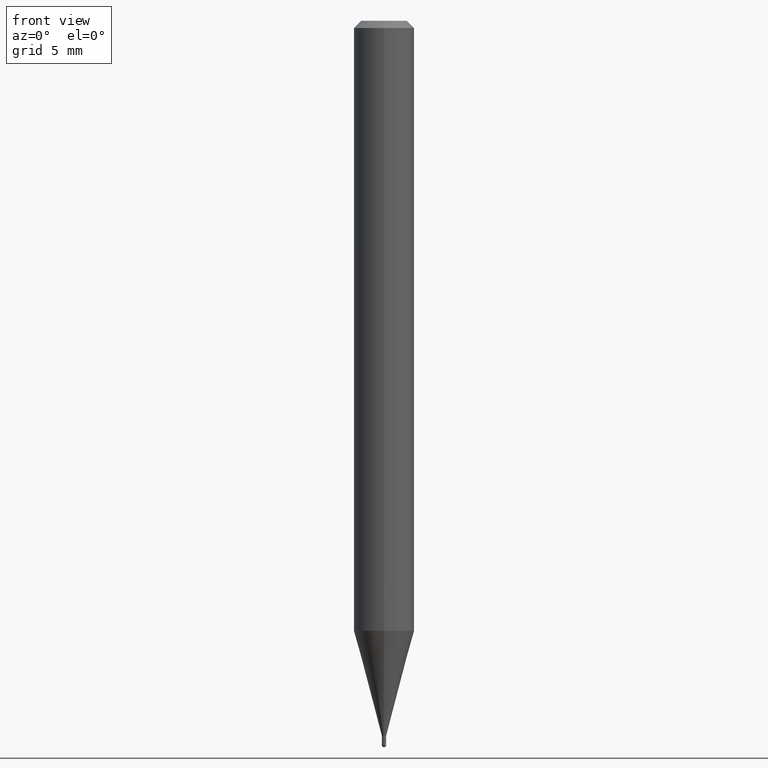
[diagram: clean part render]
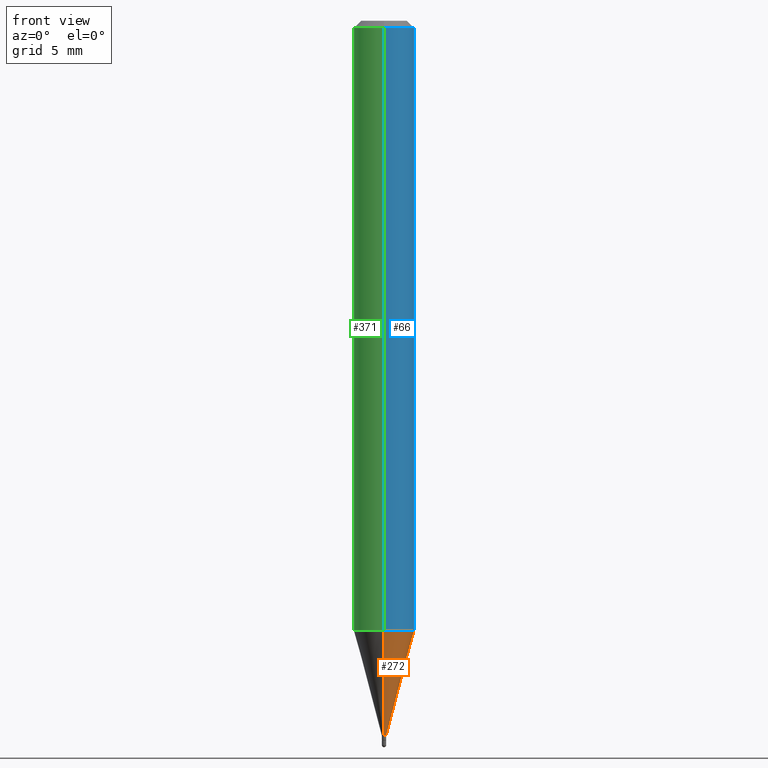
[diagram: same view with three faces highlighted in distinct colors, each labeled with its STEP entity id]
A machine part, front view with three faces highlighted in distinct colors.
Their STEP definitions:

[orange] entity #272 — the highlighted conical surface has half-angle 15 deg.
#5 = CIRCLE ( 'NONE', #73, 0.06250000000000000000 ) ;
#73 = AXIS2_PLACEMENT_3D ( 'NONE', #147, #467, #262 ) ;
#81 = CARTESIAN_POINT ( 'NONE',  ( 3.609521675180982747E-29, -5.153412540474946125E-15, -1.475999999999999979 ) ) ;
#82 = EDGE_CURVE ( 'NONE', #216, #176, #125, .T. ) ;
#87 = CARTESIAN_POINT ( 'NONE',  ( 2.380318164796668072E-16, 0.004499999999994770336, -1.475999999999999979 ) ) ;
#123 = EDGE_CURVE ( 'NONE', #216, #173, #169, .T. ) ;
#125 = LINE ( 'NONE', #128, #284 ) ;
#128 = CARTESIAN_POINT ( 'NONE',  ( -3.142333204955156550E-17, -0.004500000000005076328, -1.475999999999999979 ) ) ;
#139 = ORIENTED_EDGE ( 'NONE', *, *, #479, .F. ) ;
#147 = CARTESIAN_POINT ( 'NONE',  ( 3.080176647808220565E-29, -4.397652207725574751E-15, -1.259541053161005841 ) ) ;
#149 = DIRECTION ( 'NONE',  ( -2.445475389689012778E-29, 3.491471910890885040E-15, 1.000000000000000000 ) ) ;
#158 = CONICAL_SURFACE ( 'NONE', #232, 0.004499999999999923332, 0.2617993877991504625 ) ;
#169 = CIRCLE ( 'NONE', #386, 0.004499999999999923332 ) ;
#173 = VERTEX_POINT ( 'NONE', #87 ) ;
#176 = VERTEX_POINT ( 'NONE', #314 ) ;
#177 = DIRECTION ( 'NONE',  ( -2.445475389689012778E-29, 3.491471910890885040E-15, 1.000000000000000000 ) ) ;
#190 = DIRECTION ( 'NONE',  ( -6.982962677686265922E-15, -1.000000000000000000, 0.000000000000000000 ) ) ;
#202 = DIRECTION ( 'NONE',  ( 1.839019923739601499E-15, 0.2588190451025251249, 0.9659258262890670910 ) ) ;
#216 = VERTEX_POINT ( 'NONE', #462 ) ;
#219 = VECTOR ( 'NONE', #202, 39.37007874015748854 ) ;
#221 = ORIENTED_EDGE ( 'NONE', *, *, #407, .T. ) ;
#224 = EDGE_LOOP ( 'NONE', ( #381, #221, #139, #485 ) ) ;
#232 = AXIS2_PLACEMENT_3D ( 'NONE', #260, #177, #424 ) ;
#244 = LINE ( 'NONE', #492, #219 ) ;
#260 = CARTESIAN_POINT ( 'NONE',  ( 3.609521675180982747E-29, -5.153412540474946125E-15, -1.475999999999999979 ) ) ;
#262 = DIRECTION ( 'NONE',  ( -6.982962677686265922E-15, -1.000000000000000000, 4.370956789862821150E-15 ) ) ;
#272 = ADVANCED_FACE ( 'NONE', ( #458 ), #158, .T. ) ;
#284 = VECTOR ( 'NONE', #318, 39.37007874015748854 ) ;
#314 = CARTESIAN_POINT ( 'NONE',  ( -4.364351673553608052E-16, -0.06250000000000439926, -1.259541053161005397 ) ) ;
#318 = DIRECTION ( 'NONE',  ( -1.807323732225331323E-15, -0.2588190451025183525, 0.9659258262890689783 ) ) ;
#332 = CARTESIAN_POINT ( 'NONE',  ( 4.440892098500933817E-16, 0.06249999999999561462, -1.259541053161006063 ) ) ;
#381 = ORIENTED_EDGE ( 'NONE', *, *, #123, .T. ) ;
#384 = VERTEX_POINT ( 'NONE', #332 ) ;
#386 = AXIS2_PLACEMENT_3D ( 'NONE', #81, #149, #190 ) ;
#407 = EDGE_CURVE ( 'NONE', #173, #384, #244, .T. ) ;
#424 = DIRECTION ( 'NONE',  ( -6.982962677686265922E-15, -1.000000000000000000, 0.000000000000000000 ) ) ;
#458 = FACE_OUTER_BOUND ( 'NONE', #224, .T. ) ;
#462 = CARTESIAN_POINT ( 'NONE',  ( -3.142333204955156550E-17, -0.004500000000005076328, -1.475999999999999979 ) ) ;
#467 = DIRECTION ( 'NONE',  ( -2.445475389689012778E-29, 3.491471910890885040E-15, 1.000000000000000000 ) ) ;
#479 = EDGE_CURVE ( 'NONE', #176, #384, #5, .T. ) ;
#485 = ORIENTED_EDGE ( 'NONE', *, *, #82, .F. ) ;
#492 = CARTESIAN_POINT ( 'NONE',  ( 3.197442310924005399E-17, 0.004499999999994770336, -1.475999999999999979 ) ) ;

[blue] entity #66 — the highlighted cylindrical surface (edge-blend (fillet) strip) has radius 1.5875 mm, axis along (-0, 0, 1).
#3 = VECTOR ( 'NONE', #211, 39.37007874015748143 ) ;
#5 = CIRCLE ( 'NONE', #73, 0.06250000000000000000 ) ;
#45 = FACE_OUTER_BOUND ( 'NONE', #301, .T. ) ;
#52 = DIRECTION ( 'NONE',  ( -6.982962677686265922E-15, -1.000000000000000000, 3.491471910890885040E-15 ) ) ;
#57 = CARTESIAN_POINT ( 'NONE',  ( -4.364351673553916201E-16, -0.06250000000000000000, 2.182169944306803150E-16 ) ) ;
#65 = VERTEX_POINT ( 'NONE', #434 ) ;
#66 = ADVANCED_FACE ( 'NONE', ( #45 ), #357, .T. ) ;
#73 = AXIS2_PLACEMENT_3D ( 'NONE', #147, #467, #262 ) ;
#91 = CARTESIAN_POINT ( 'NONE',  ( 4.440892098500625669E-16, 0.06250000000000000000, -2.182169944306803150E-16 ) ) ;
#92 = AXIS2_PLACEMENT_3D ( 'NONE', #153, #118, #52 ) ;
#107 = CARTESIAN_POINT ( 'NONE',  ( 3.668213084533521426E-31, -5.237207866336330444E-17, -0.01500000000000000812 ) ) ;
#118 = DIRECTION ( 'NONE',  ( -2.445475389689012778E-29, 3.491471910890885040E-15, 1.000000000000000000 ) ) ;
#126 = LINE ( 'NONE', #57, #473 ) ;
#129 = ORIENTED_EDGE ( 'NONE', *, *, #241, .T. ) ;
#147 = CARTESIAN_POINT ( 'NONE',  ( 3.080176647808220565E-29, -4.397652207725574751E-15, -1.259541053161005841 ) ) ;
#153 = CARTESIAN_POINT ( 'NONE',  ( 0.000000000000000000, 0.000000000000000000, 0.000000000000000000 ) ) ;
#157 = CARTESIAN_POINT ( 'NONE',  ( 4.440892098500935790E-16, 0.06249999999999995143, -0.01500000000000022669 ) ) ;
#165 = ORIENTED_EDGE ( 'NONE', *, *, #442, .F. ) ;
#175 = DIRECTION ( 'NONE',  ( -6.982962677686265922E-15, -1.000000000000000000, 3.483106191921935554E-15 ) ) ;
#176 = VERTEX_POINT ( 'NONE', #314 ) ;
#211 = DIRECTION ( 'NONE',  ( -2.445475389689012497E-29, 3.491471910890885040E-15, 1.000000000000000000 ) ) ;
#229 = CIRCLE ( 'NONE', #495, 0.06250000000000000000 ) ;
#241 = EDGE_CURVE ( 'NONE', #384, #398, #456, .T. ) ;
#262 = DIRECTION ( 'NONE',  ( -6.982962677686265922E-15, -1.000000000000000000, 4.370956789862821150E-15 ) ) ;
#267 = DIRECTION ( 'NONE',  ( -2.445475389689012778E-29, 3.491471910890885040E-15, 1.000000000000000000 ) ) ;
#301 = EDGE_LOOP ( 'NONE', ( #505, #129, #165, #413 ) ) ;
#314 = CARTESIAN_POINT ( 'NONE',  ( -4.364351673553608052E-16, -0.06250000000000439926, -1.259541053161005397 ) ) ;
#332 = CARTESIAN_POINT ( 'NONE',  ( 4.440892098500933817E-16, 0.06249999999999561462, -1.259541053161006063 ) ) ;
#357 = CYLINDRICAL_SURFACE ( 'NONE', #92, 0.06250000000000000000 ) ;
#384 = VERTEX_POINT ( 'NONE', #332 ) ;
#398 = VERTEX_POINT ( 'NONE', #157 ) ;
#405 = EDGE_CURVE ( 'NONE', #176, #65, #126, .T. ) ;
#413 = ORIENTED_EDGE ( 'NONE', *, *, #405, .F. ) ;
#434 = CARTESIAN_POINT ( 'NONE',  ( -4.364351673553912750E-16, -0.06250000000000005551, -0.01499999999999979128 ) ) ;
#442 = EDGE_CURVE ( 'NONE', #65, #398, #229, .T. ) ;
#443 = DIRECTION ( 'NONE',  ( -2.445475389689012497E-29, 3.491471910890885040E-15, 1.000000000000000000 ) ) ;
#456 = LINE ( 'NONE', #91, #3 ) ;
#467 = DIRECTION ( 'NONE',  ( -2.445475389689012778E-29, 3.491471910890885040E-15, 1.000000000000000000 ) ) ;
#473 = VECTOR ( 'NONE', #443, 39.37007874015748143 ) ;
#479 = EDGE_CURVE ( 'NONE', #176, #384, #5, .T. ) ;
#495 = AXIS2_PLACEMENT_3D ( 'NONE', #107, #267, #175 ) ;
#505 = ORIENTED_EDGE ( 'NONE', *, *, #479, .T. ) ;

[green] entity #371 — the highlighted cylindrical surface (edge-blend (fillet) strip) has radius 1.5875 mm, axis along (-0, 0, 1).
#3 = VECTOR ( 'NONE', #211, 39.37007874015748143 ) ;
#11 = CARTESIAN_POINT ( 'NONE',  ( 3.668213084533521426E-31, -5.237207866336330444E-17, -0.01500000000000000812 ) ) ;
#18 = DIRECTION ( 'NONE',  ( -6.982962677686265922E-15, -1.000000000000000000, 3.483106191921935554E-15 ) ) ;
#39 = DIRECTION ( 'NONE',  ( -6.982962677686265922E-15, -1.000000000000000000, 4.370956789862821150E-15 ) ) ;
#43 = ORIENTED_EDGE ( 'NONE', *, *, #313, .F. ) ;
#46 = EDGE_CURVE ( 'NONE', #384, #176, #276, .T. ) ;
#53 = DIRECTION ( 'NONE',  ( -6.982962677686265922E-15, -1.000000000000000000, 3.491471910890885040E-15 ) ) ;
#57 = CARTESIAN_POINT ( 'NONE',  ( -4.364351673553916201E-16, -0.06250000000000000000, 2.182169944306803150E-16 ) ) ;
#65 = VERTEX_POINT ( 'NONE', #434 ) ;
#91 = CARTESIAN_POINT ( 'NONE',  ( 4.440892098500625669E-16, 0.06250000000000000000, -2.182169944306803150E-16 ) ) ;
#126 = LINE ( 'NONE', #57, #473 ) ;
#150 = ORIENTED_EDGE ( 'NONE', *, *, #241, .F. ) ;
#157 = CARTESIAN_POINT ( 'NONE',  ( 4.440892098500935790E-16, 0.06249999999999995143, -0.01500000000000022669 ) ) ;
#176 = VERTEX_POINT ( 'NONE', #314 ) ;
#211 = DIRECTION ( 'NONE',  ( -2.445475389689012497E-29, 3.491471910890885040E-15, 1.000000000000000000 ) ) ;
#241 = EDGE_CURVE ( 'NONE', #384, #398, #456, .T. ) ;
#254 = FACE_OUTER_BOUND ( 'NONE', #342, .T. ) ;
#255 = ORIENTED_EDGE ( 'NONE', *, *, #405, .T. ) ;
#257 = CYLINDRICAL_SURFACE ( 'NONE', #324, 0.06250000000000000000 ) ;
#276 = CIRCLE ( 'NONE', #437, 0.06250000000000000000 ) ;
#277 = AXIS2_PLACEMENT_3D ( 'NONE', #11, #447, #18 ) ;
#295 = CARTESIAN_POINT ( 'NONE',  ( 0.000000000000000000, 0.000000000000000000, 0.000000000000000000 ) ) ;
#313 = EDGE_CURVE ( 'NONE', #398, #65, #450, .T. ) ;
#314 = CARTESIAN_POINT ( 'NONE',  ( -4.364351673553608052E-16, -0.06250000000000439926, -1.259541053161005397 ) ) ;
#319 = ORIENTED_EDGE ( 'NONE', *, *, #46, .T. ) ;
#324 = AXIS2_PLACEMENT_3D ( 'NONE', #295, #403, #53 ) ;
#332 = CARTESIAN_POINT ( 'NONE',  ( 4.440892098500933817E-16, 0.06249999999999561462, -1.259541053161006063 ) ) ;
#342 = EDGE_LOOP ( 'NONE', ( #150, #319, #255, #43 ) ) ;
#371 = ADVANCED_FACE ( 'NONE', ( #254 ), #257, .T. ) ;
#384 = VERTEX_POINT ( 'NONE', #332 ) ;
#398 = VERTEX_POINT ( 'NONE', #157 ) ;
#403 = DIRECTION ( 'NONE',  ( -2.445475389689012778E-29, 3.491471910890885040E-15, 1.000000000000000000 ) ) ;
#405 = EDGE_CURVE ( 'NONE', #176, #65, #126, .T. ) ;
#427 = DIRECTION ( 'NONE',  ( -2.445475389689012778E-29, 3.491471910890885040E-15, 1.000000000000000000 ) ) ;
#434 = CARTESIAN_POINT ( 'NONE',  ( -4.364351673553912750E-16, -0.06250000000000005551, -0.01499999999999979128 ) ) ;
#437 = AXIS2_PLACEMENT_3D ( 'NONE', #466, #427, #39 ) ;
#443 = DIRECTION ( 'NONE',  ( -2.445475389689012497E-29, 3.491471910890885040E-15, 1.000000000000000000 ) ) ;
#447 = DIRECTION ( 'NONE',  ( -2.445475389689012778E-29, 3.491471910890885040E-15, 1.000000000000000000 ) ) ;
#450 = CIRCLE ( 'NONE', #277, 0.06250000000000000000 ) ;
#456 = LINE ( 'NONE', #91, #3 ) ;
#466 = CARTESIAN_POINT ( 'NONE',  ( 3.080176647808220565E-29, -4.397652207725574751E-15, -1.259541053161005841 ) ) ;
#473 = VECTOR ( 'NONE', #443, 39.37007874015748143 ) ;